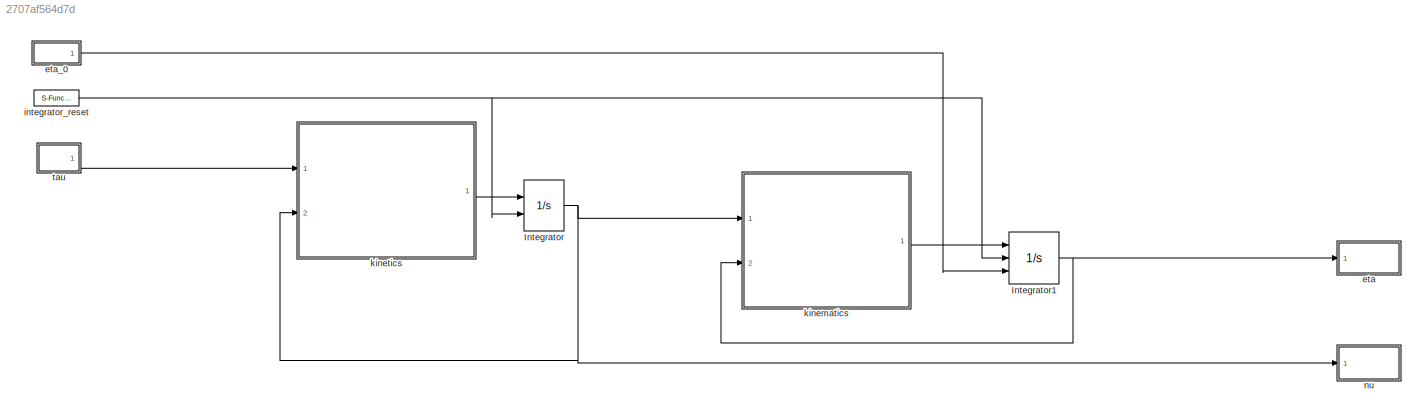
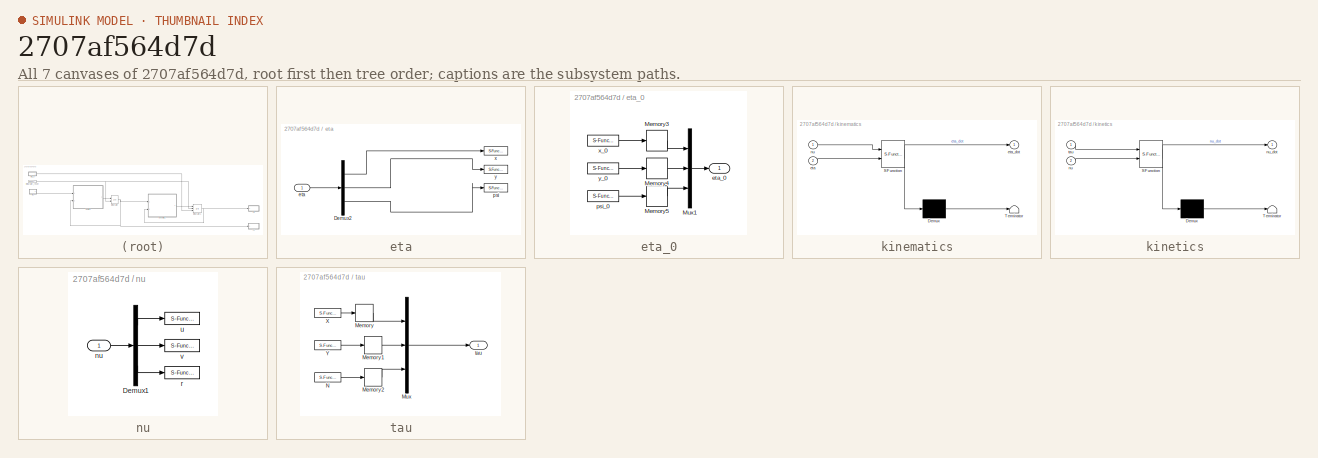
[diagram: thumbnail index - all 7 canvases of the model, root first then tree order]
MODEL slx_2707af564d7d
KIND model
BLOCK [Integrator] Integrator
  ExternalReset = rising
  InitialCondition = [0 0 0]'
  Ports = [2, 1]
BLOCK [Integrator] Integrator1
  ExternalReset = rising
  InitialCondition = [0 0 0]'
  InitialConditionSource = external
  Ports = [3, 1]
BLOCK [SubSystem] eta
  Ports = [1]
  RequestExecContextInheritance = off
BLOCK [Demux] eta/Demux2
  DisplayOption = bar
  Outputs = 3
  Ports = [1, 3]
BLOCK [Inport] eta/eta
  IconDisplay = Port number
BLOCK [S-Function] eta/psi
  CopyFcn = NIVeriStand_MDL_functions('', 'IO_copy');
  DeleteFcn = NIVeriStand_MDL_functions('', 'IO_delete');
  EnableBusSupport = off
  FunctionName = NIVeriStandIO
  MoveFcn = set_param(gcb, 'Mask', 'on');
  Parameters = width dtype portnum stime stype btype
  Ports = [1]
  Priority = 3
BLOCK [S-Function] eta/x
  CopyFcn = NIVeriStand_MDL_functions('', 'IO_copy');
  DeleteFcn = NIVeriStand_MDL_functions('', 'IO_delete');
  EnableBusSupport = off
  FunctionName = NIVeriStandIO
  MoveFcn = set_param(gcb, 'Mask', 'on');
  Parameters = width dtype portnum stime stype btype
  Ports = [1]
  Priority = 1
BLOCK [S-Function] eta/y
  CopyFcn = NIVeriStand_MDL_functions('', 'IO_copy');
  DeleteFcn = NIVeriStand_MDL_functions('', 'IO_delete');
  EnableBusSupport = off
  FunctionName = NIVeriStandIO
  MoveFcn = set_param(gcb, 'Mask', 'on');
  Parameters = width dtype portnum stime stype btype
  Ports = [1]
  Priority = 2
BLOCK [SubSystem] eta_0
  Ports = [0, 1]
  RequestExecContextInheritance = off
BLOCK [Memory] eta_0/Memory3
BLOCK [Memory] eta_0/Memory4
BLOCK [Memory] eta_0/Memory5
BLOCK [Mux] eta_0/Mux1
  DisplayOption = bar
  Inputs = 3
  Ports = [3, 1]
BLOCK [Outport] eta_0/eta_0
  IconDisplay = Port number
BLOCK [S-Function] eta_0/psi_0
  CopyFcn = NIVeriStand_MDL_functions('', 'IO_copy');
  DeleteFcn = NIVeriStand_MDL_functions('', 'IO_delete');
  EnableBusSupport = off
  FunctionName = NIVeriStandIO
  MoveFcn = set_param(gcb, 'Mask', 'on');
  Parameters = width dtype portnum stime stype btype
  Ports = [0, 1]
  Priority = 5
BLOCK [S-Function] eta_0/x_0
  CopyFcn = NIVeriStand_MDL_functions('', 'IO_copy');
  DeleteFcn = NIVeriStand_MDL_functions('', 'IO_delete');
  EnableBusSupport = off
  FunctionName = NIVeriStandIO
  MoveFcn = set_param(gcb, 'Mask', 'on');
  Parameters = width dtype portnum stime stype btype
  Ports = [0, 1]
  Priority = 6
BLOCK [S-Function] eta_0/y_0
  CopyFcn = NIVeriStand_MDL_functions('', 'IO_copy');
  DeleteFcn = NIVeriStand_MDL_functions('', 'IO_delete');
  EnableBusSupport = off
  FunctionName = NIVeriStandIO
  MoveFcn = set_param(gcb, 'Mask', 'on');
  Parameters = width dtype portnum stime stype btype
  Ports = [0, 1]
  Priority = 7
BLOCK [S-Function] integrator_reset
  CopyFcn = NIVeriStand_MDL_functions('', 'IO_copy');
  DeleteFcn = NIVeriStand_MDL_functions('', 'IO_delete');
  EnableBusSupport = off
  FunctionName = NIVeriStandIO
  MoveFcn = set_param(gcb, 'Mask', 'on');
  Parameters = width dtype portnum stime stype btype
  Ports = [0, 1]
  Priority = 1
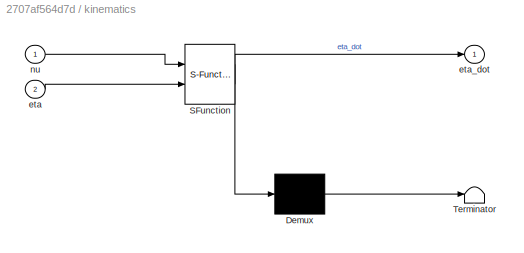
BLOCK [SubSystem] kinematics
  ErrorFcn = Stateflow.Translate.translate
  PermitHierarchicalResolution = ExplicitOnly
  Ports = [2, 1]
  RequestExecContextInheritance = off
  SFBlockType = MATLAB Function
  TreatAsAtomicUnit = on
BLOCK [Demux] kinematics/ Demux 
  Outputs = 1
  Ports = [1, 1]
BLOCK [S-Function] kinematics/ SFunction 
  EnableBusSupport = on
  FunctionName = sf_sfun
  PortCounts = [2 2]
  Ports = [2, 2]
  Tag = Stateflow S-Function CSE1_HIL_tau 1
BLOCK [Terminator] kinematics/ Terminator 
BLOCK [Inport] kinematics/eta
  IconDisplay = Port number
  Port = 2
BLOCK [Outport] kinematics/eta_dot
  IconDisplay = Port number
BLOCK [Inport] kinematics/nu
  IconDisplay = Port number
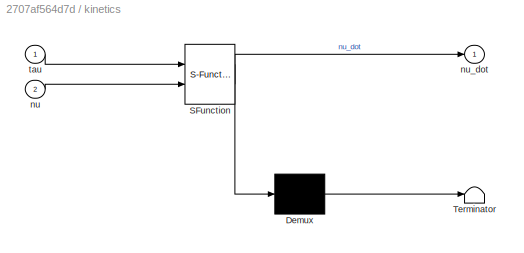
BLOCK [SubSystem] kinetics
  ErrorFcn = Stateflow.Translate.translate
  PermitHierarchicalResolution = ExplicitOnly
  Ports = [2, 1]
  RequestExecContextInheritance = off
  SFBlockType = MATLAB Function
  TreatAsAtomicUnit = on
BLOCK [Demux] kinetics/ Demux 
  Outputs = 1
  Ports = [1, 1]
BLOCK [S-Function] kinetics/ SFunction 
  EnableBusSupport = on
  FunctionName = sf_sfun
  PortCounts = [2 2]
  Ports = [2, 2]
  Tag = Stateflow S-Function CSE1_HIL_tau 2
BLOCK [Terminator] kinetics/ Terminator 
BLOCK [Inport] kinetics/nu
  IconDisplay = Port number
  Port = 2
BLOCK [Outport] kinetics/nu_dot
  IconDisplay = Port number
BLOCK [Inport] kinetics/tau
  IconDisplay = Port number
BLOCK [SubSystem] nu
  Ports = [1]
  RequestExecContextInheritance = off
BLOCK [Demux] nu/Demux1
  DisplayOption = bar
  Outputs = 3
  Ports = [1, 3]
BLOCK [Inport] nu/nu
  IconDisplay = Port number
BLOCK [S-Function] nu/r
  CopyFcn = NIVeriStand_MDL_functions('', 'IO_copy');
  DeleteFcn = NIVeriStand_MDL_functions('', 'IO_delete');
  EnableBusSupport = off
  FunctionName = NIVeriStandIO
  MoveFcn = set_param(gcb, 'Mask', 'on');
  Parameters = width dtype portnum stime stype btype
  Ports = [1]
  Priority = 6
BLOCK [S-Function] nu/u
  CopyFcn = NIVeriStand_MDL_functions('', 'IO_copy');
  DeleteFcn = NIVeriStand_MDL_functions('', 'IO_delete');
  EnableBusSupport = off
  FunctionName = NIVeriStandIO
  MoveFcn = set_param(gcb, 'Mask', 'on');
  Parameters = width dtype portnum stime stype btype
  Ports = [1]
  Priority = 4
BLOCK [S-Function] nu/v
  CopyFcn = NIVeriStand_MDL_functions('', 'IO_copy');
  DeleteFcn = NIVeriStand_MDL_functions('', 'IO_delete');
  EnableBusSupport = off
  FunctionName = NIVeriStandIO
  MoveFcn = set_param(gcb, 'Mask', 'on');
  Parameters = width dtype portnum stime stype btype
  Ports = [1]
  Priority = 5
BLOCK [SubSystem] tau
  Ports = [0, 1]
  RequestExecContextInheritance = off
BLOCK [Memory] tau/Memory
BLOCK [Memory] tau/Memory1
BLOCK [Memory] tau/Memory2
BLOCK [Mux] tau/Mux
  DisplayOption = bar
  Inputs = 3
  Ports = [3, 1]
BLOCK [S-Function] tau/N
  CopyFcn = NIVeriStand_MDL_functions('', 'IO_copy');
  DeleteFcn = NIVeriStand_MDL_functions('', 'IO_delete');
  EnableBusSupport = off
  FunctionName = NIVeriStandIO
  MoveFcn = set_param(gcb, 'Mask', 'on');
  Parameters = width dtype portnum stime stype btype
  Ports = [0, 1]
  Priority = 4
BLOCK [S-Function] tau/X
  CopyFcn = NIVeriStand_MDL_functions('', 'IO_copy');
  DeleteFcn = NIVeriStand_MDL_functions('', 'IO_delete');
  EnableBusSupport = off
  FunctionName = NIVeriStandIO
  MoveFcn = set_param(gcb, 'Mask', 'on');
  Parameters = width dtype portnum stime stype btype
  Ports = [0, 1]
  Priority = 2
BLOCK [S-Function] tau/Y
  CopyFcn = NIVeriStand_MDL_functions('', 'IO_copy');
  DeleteFcn = NIVeriStand_MDL_functions('', 'IO_delete');
  EnableBusSupport = off
  FunctionName = NIVeriStandIO
  MoveFcn = set_param(gcb, 'Mask', 'on');
  Parameters = width dtype portnum stime stype btype
  Ports = [0, 1]
  Priority = 3
BLOCK [Outport] tau/tau
  IconDisplay = Port number
NET Integrator1:1 -> eta:1, kinematics:2
NET Integrator:1 -> kinematics:1, kinetics:2, nu:1
LINE eta/Demux2:1 -> eta/x:1
LINE eta/Demux2:2 -> eta/y:1
LINE eta/Demux2:3 -> eta/psi:1
LINE eta/eta:1 -> eta/Demux2:1
LINE eta_0/Memory3:1 -> eta_0/Mux1:1
LINE eta_0/Memory4:1 -> eta_0/Mux1:2
LINE eta_0/Memory5:1 -> eta_0/Mux1:3
LINE eta_0/Mux1:1 -> eta_0/eta_0:1
LINE eta_0/psi_0:1 -> eta_0/Memory5:1
LINE eta_0/x_0:1 -> eta_0/Memory3:1
LINE eta_0/y_0:1 -> eta_0/Memory4:1
LINE eta_0:1 -> Integrator1:3
NET integrator_reset:1 -> Integrator1:2, Integrator:2
LINE kinematics:1 -> Integrator1:1
LINE kinetics:1 -> Integrator:1
LINE nu/Demux1:1 -> nu/u:1
LINE nu/Demux1:2 -> nu/v:1
LINE nu/Demux1:3 -> nu/r:1
LINE nu/nu:1 -> nu/Demux1:1
LINE tau/Memory1:1 -> tau/Mux:2
LINE tau/Memory2:1 -> tau/Mux:3
LINE tau/Memory:1 -> tau/Mux:1
LINE tau/Mux:1 -> tau/tau:1
LINE tau/N:1 -> tau/Memory2:1
LINE tau/X:1 -> tau/Memory:1
LINE tau/Y:1 -> tau/Memory1:1
LINE tau:1 -> kinetics:1
note: NET lines group one-source signal fan-out (src -> all destinations, sorted); 1:1 wires keep LINE
